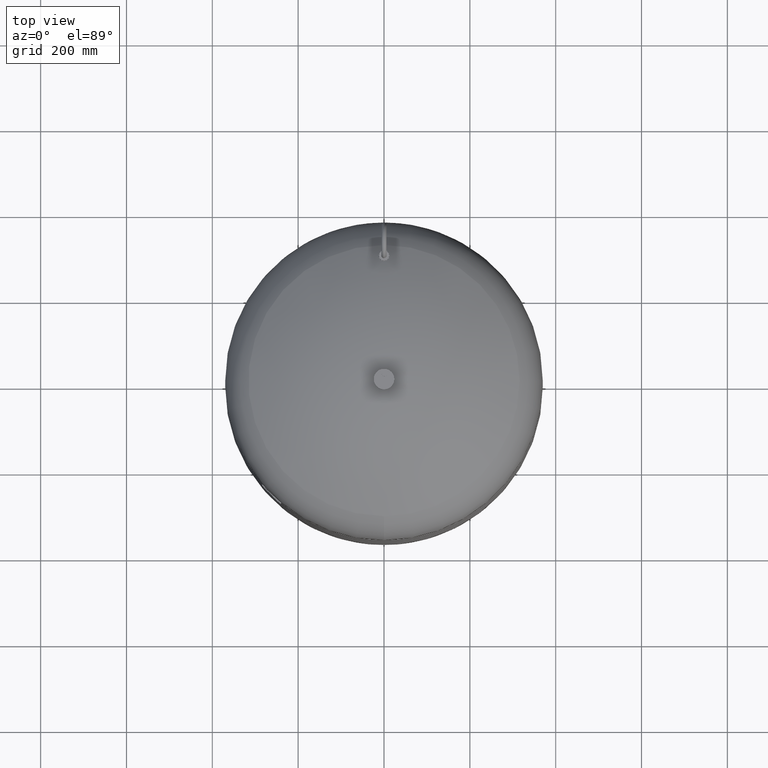
[diagram: clean part render]
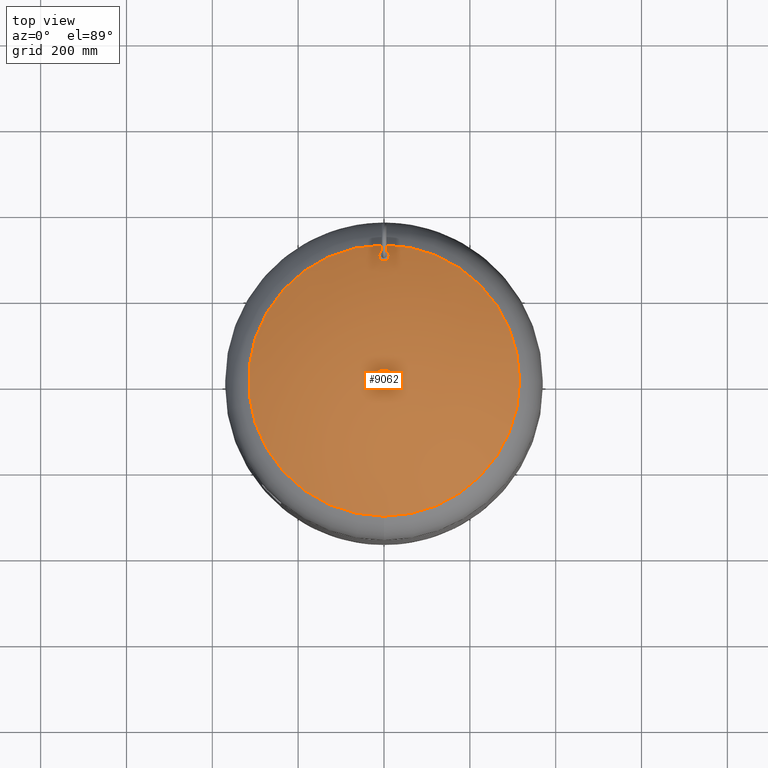
[diagram: same view with one face highlighted and labeled with its STEP entity id]
A machine part, top view. The second image highlights one B-rep face of the part: STEP entity #9062.
In plain terms, the highlighted spherical surface has radius 594 mm.
Its self-contained STEP definition (entity closure, byte-faithful):
#8861=CARTESIAN_POINT('',(-1.114251E-014,-315.931034482758610,1129.014494274920500));
#8862=VERTEX_POINT('',#8861);
#8878=CARTESIAN_POINT('',(2.754660E-014,315.931034482758610,1129.014494274920300));
#8879=VERTEX_POINT('',#8878);
#8887=CARTESIAN_POINT('',(315.931034482758610,-1.671377E-014,1129.014494274920500));
#8888=VERTEX_POINT('',#8887);
#8889=CARTESIAN_POINT('',(-1.114251E-014,-1.671377E-014,1129.014494274920500));
#8890=DIRECTION('',(0.0,0.0,-1.0));
#8891=DIRECTION('',(1.0,0.0,0.0));
#8892=AXIS2_PLACEMENT_3D('',#8889,#8890,#8891);
#8893=CIRCLE('',#8892,315.931034482758610);
#8894=EDGE_CURVE('',#8879,#8888,#8893,.T.);
#8896=CARTESIAN_POINT('',(-1.114251E-014,-1.671377E-014,1129.014494274920500));
#8897=DIRECTION('',(0.0,0.0,-1.0));
#8898=DIRECTION('',(1.0,0.0,0.0));
#8899=AXIS2_PLACEMENT_3D('',#8896,#8897,#8898);
#8900=CIRCLE('',#8899,315.931034482758610);
#8901=EDGE_CURVE('',#8888,#8862,#8900,.T.);
#8913=CARTESIAN_POINT('',(-1.426741E-015,300.649999999999980,1138.294424623184800));
#8914=VERTEX_POINT('',#8913);
#8930=CARTESIAN_POINT('',(-1.738477E-015,279.350000000000020,1150.213293898581000));
#8931=VERTEX_POINT('',#8930);
#8938=CARTESIAN_POINT('',(-1.426741E-015,300.649999999999980,1138.294424623184800));
#8939=CARTESIAN_POINT('',(0.664517088266966,300.649999999999980,1138.294424623184800));
#8940=CARTESIAN_POINT('',(1.348109253964791,300.586742816807940,1138.330237396211300));
#8941=CARTESIAN_POINT('',(2.699997526115716,300.325044086684220,1138.478348239149500));
#8942=CARTESIAN_POINT('',(3.368311995923750,300.126673865972800,1138.590604711757800));
#8943=CARTESIAN_POINT('',(4.642225047619459,299.609620017986860,1138.883046385434900));
#8944=CARTESIAN_POINT('',(5.249078569755759,299.290487690306630,1139.063482169014600));
#8945=CARTESIAN_POINT('',(6.365540166833180,298.564221257298130,1139.473827245883500));
#8946=CARTESIAN_POINT('',(6.875165778754454,298.157105848957940,1139.703721915900100));
#8947=CARTESIAN_POINT('',(7.847982860928026,297.235396201609030,1140.223809168565800));
#8948=CARTESIAN_POINT('',(8.329195202777362,296.677378821544890,1140.538447018439900));
#8949=CARTESIAN_POINT('',(9.167633919748026,295.469677227438580,1141.218672395249100));
#8950=CARTESIAN_POINT('',(9.524959682086166,294.820043720028930,1141.584227440323500));
#8951=CARTESIAN_POINT('',(10.094573362227591,293.472357809267690,1142.341702181573100));
#8952=CARTESIAN_POINT('',(10.307217396789019,292.773495712663700,1142.734074588636800));
#8953=CARTESIAN_POINT('',(10.584964209315700,291.374605990228820,1143.518559937688700));
#8954=CARTESIAN_POINT('',(10.650000000000000,290.674568008310080,1143.910678128115700));
#8955=CARTESIAN_POINT('',(10.650000000000000,289.326890933060330,1144.664749724906600));
#8956=CARTESIAN_POINT('',(10.585242166991089,288.627963842796310,1145.055402266440100));
#8957=CARTESIAN_POINT('',(10.308262040270693,287.230601388777020,1145.835532495903000));
#8958=CARTESIAN_POINT('',(10.096100866333323,286.532157118036820,1146.225015928660900));
#8959=CARTESIAN_POINT('',(9.527392653826960,285.184817947542680,1146.975550208299900));
#8960=CARTESIAN_POINT('',(9.170481345050588,284.535105591821660,1147.337058921764500));
#8961=CARTESIAN_POINT('',(8.332742027804864,283.327053926448230,1148.008619632953900));
#8962=CARTESIAN_POINT('',(7.851815066558222,282.768768683924800,1148.318645446750900));
#8963=CARTESIAN_POINT('',(6.878746613494370,281.845830867641440,1148.830806056575300));
#8964=CARTESIAN_POINT('',(6.368501973952601,281.437916940925050,1149.057001015449900));
#8965=CARTESIAN_POINT('',(5.250854218026277,280.710456755459800,1149.460173479165400));
#8966=CARTESIAN_POINT('',(4.643436250791682,280.390929593923540,1149.637144272945100));
#8967=CARTESIAN_POINT('',(3.368640291526728,279.873401441482540,1149.923682600095600));
#8968=CARTESIAN_POINT('',(2.700014877431559,279.674951273003500,1150.033501796580800));
#8969=CARTESIAN_POINT('',(1.347853391049690,279.413215653805140,1150.178326206185800));
#8970=CARTESIAN_POINT('',(0.664299790820504,279.350000000000020,1150.213293898581000));
#8971=CARTESIAN_POINT('',(-1.738477E-015,279.350000000000020,1150.213293898581000));
#8972=B_SPLINE_CURVE_WITH_KNOTS('',3,(#8938,#8939,#8940,#8941,#8942,#8943,#8944,#8945,#8946,#8947,#8948,#8949,#8950,#8951,#8952,#8953,#8954,#8955,#8956,#8957,#8958,#8959,#8960,#8961,#8962,#8963,#8964,#8965,#8966,#8967,#8968,#8969,#8970,#8971),.UNSPECIFIED.,.F.,.U.,(4,2,2,2,2,2,2,2,2,2,2,2,2,2,2,2,4),(0.0,1.993551264800902,3.987102529601803,5.980653794402706,7.974205059203607,10.293160315896881,12.612115572590152,14.931070829283426,17.250026085976700,19.563965955461391,21.877905824946087,24.191845694430782,26.505785563915474,28.498684936376989,30.491584308838508,32.484483681300027,34.477383053761542),.UNSPECIFIED.);
#8973=EDGE_CURVE('',#8914,#8931,#8972,.T.);
#8984=CARTESIAN_POINT('',(-1.738477E-015,279.350000000000020,1150.213293898581000));
#8985=CARTESIAN_POINT('',(-0.664299790820507,279.350000000000020,1150.213293898581000));
#8986=CARTESIAN_POINT('',(-1.347853391049694,279.413215653805140,1150.178326206185800));
#8987=CARTESIAN_POINT('',(-2.700014877431564,279.674951273003500,1150.033501796580800));
#8988=CARTESIAN_POINT('',(-3.368640291526734,279.873401441482540,1149.923682600095600));
#8989=CARTESIAN_POINT('',(-4.643436250791682,280.390929593923540,1149.637144272945100));
#8990=CARTESIAN_POINT('',(-5.250854218026280,280.710456755459800,1149.460173479165400));
#8991=CARTESIAN_POINT('',(-6.368501973952598,281.437916940925050,1149.057001015449900));
#8992=CARTESIAN_POINT('',(-6.878746613494377,281.845830867641440,1148.830806056575300));
#8993=CARTESIAN_POINT('',(-7.851815066558236,282.768768683924800,1148.318645446750900));
#8994=CARTESIAN_POINT('',(-8.332742027804892,283.327053926448290,1148.008619632954200));
#8995=CARTESIAN_POINT('',(-9.170481345050627,284.535105591821720,1147.337058921764800));
#8996=CARTESIAN_POINT('',(-9.527392653826961,285.184817947542680,1146.975550208299900));
#8997=CARTESIAN_POINT('',(-10.096100866333327,286.532157118036820,1146.225015928660900));
#8998=CARTESIAN_POINT('',(-10.308262040270678,287.230601388776850,1145.835532495903000));
#8999=CARTESIAN_POINT('',(-10.585242166991081,288.627963842796130,1145.055402266440100));
#9000=CARTESIAN_POINT('',(-10.650000000000004,289.326890933060330,1144.664749724906600));
#9001=CARTESIAN_POINT('',(-10.650000000000004,290.674568008310080,1143.910678128115700));
#9002=CARTESIAN_POINT('',(-10.584964209315713,291.374605990228760,1143.518559937688700));
#9003=CARTESIAN_POINT('',(-10.307217396789024,292.773495712663700,1142.734074588636800));
#9004=CARTESIAN_POINT('',(-10.094573362227585,293.472357809267750,1142.341702181573100));
#9005=CARTESIAN_POINT('',(-9.524959682086173,294.820043720028880,1141.584227440323700));
#9006=CARTESIAN_POINT('',(-9.167633919748015,295.469677227438640,1141.218672395249300));
#9007=CARTESIAN_POINT('',(-8.329195202777386,296.677378821544830,1140.538447018439900));
#9008=CARTESIAN_POINT('',(-7.847982860928025,297.235396201608980,1140.223809168565800));
#9009=CARTESIAN_POINT('',(-6.875165778754459,298.157105848957830,1139.703721915900100));
#9010=CARTESIAN_POINT('',(-6.365540166833259,298.564221257298070,1139.473827245883500));
#9011=CARTESIAN_POINT('',(-5.249078569755819,299.290487690306580,1139.063482169014600));
#9012=CARTESIAN_POINT('',(-4.642225047619510,299.609620017986860,1138.883046385434900));
#9013=CARTESIAN_POINT('',(-3.368311995923790,300.126673865972860,1138.590604711757600));
#9014=CARTESIAN_POINT('',(-2.699997526115732,300.325044086684220,1138.478348239149500));
#9015=CARTESIAN_POINT('',(-1.348109253964804,300.586742816807940,1138.330237396211300));
#9016=CARTESIAN_POINT('',(-0.664517088266972,300.649999999999980,1138.294424623184800));
#9017=CARTESIAN_POINT('',(-1.426741E-015,300.649999999999980,1138.294424623184800));
#9018=B_SPLINE_CURVE_WITH_KNOTS('',3,(#8984,#8985,#8986,#8987,#8988,#8989,#8990,#8991,#8992,#8993,#8994,#8995,#8996,#8997,#8998,#8999,#9000,#9001,#9002,#9003,#9004,#9005,#9006,#9007,#9008,#9009,#9010,#9011,#9012,#9013,#9014,#9015,#9016,#9017),.UNSPECIFIED.,.F.,.U.,(4,2,2,2,2,2,2,2,2,2,2,2,2,2,2,2,4),(34.477383053761542,36.470282426223058,38.463181798684573,40.456081171146081,42.448980543607597,44.762920413092303,47.076860282577016,49.390800152061722,51.704740021546428,54.023695278239678,56.342650534932929,58.661605791626172,60.980561048319423,62.974112313120344,64.967663577921257,66.961214842722171,68.954766107523085),.UNSPECIFIED.);
#9019=EDGE_CURVE('',#8931,#8914,#9018,.T.);
#9042=CARTESIAN_POINT('',(-7.274402E-014,-1.091160E-013,626.0));
#9043=DIRECTION('',(0.0,-1.0,0.0));
#9044=DIRECTION('',(-1.0,0.0,0.0));
#9045=AXIS2_PLACEMENT_3D('',#9042,#9043,#9044);
#9046=SPHERICAL_SURFACE('',#9045,594.0);
#9047=ORIENTED_EDGE('',*,*,#8973,.T.);
#9048=ORIENTED_EDGE('',*,*,#9019,.T.);
#9049=EDGE_LOOP('',(#9047,#9048));
#9050=FACE_OUTER_BOUND('',#9049,.T.);
#9051=ORIENTED_EDGE('',*,*,#8901,.F.);
#9052=ORIENTED_EDGE('',*,*,#8894,.F.);
#9053=CARTESIAN_POINT('',(-1.114251E-014,-1.671377E-014,1129.014494274920500));
#9054=DIRECTION('',(0.0,0.0,-1.0));
#9055=DIRECTION('',(1.0,0.0,0.0));
#9056=AXIS2_PLACEMENT_3D('',#9053,#9054,#9055);
#9057=CIRCLE('',#9056,315.931034482758610);
#9058=EDGE_CURVE('',#8862,#8879,#9057,.T.);
#9059=ORIENTED_EDGE('',*,*,#9058,.F.);
#9060=EDGE_LOOP('',(#9051,#9052,#9059));
#9061=FACE_BOUND('',#9060,.T.);
#9062=ADVANCED_FACE('',(#9050,#9061),#9046,.T.);